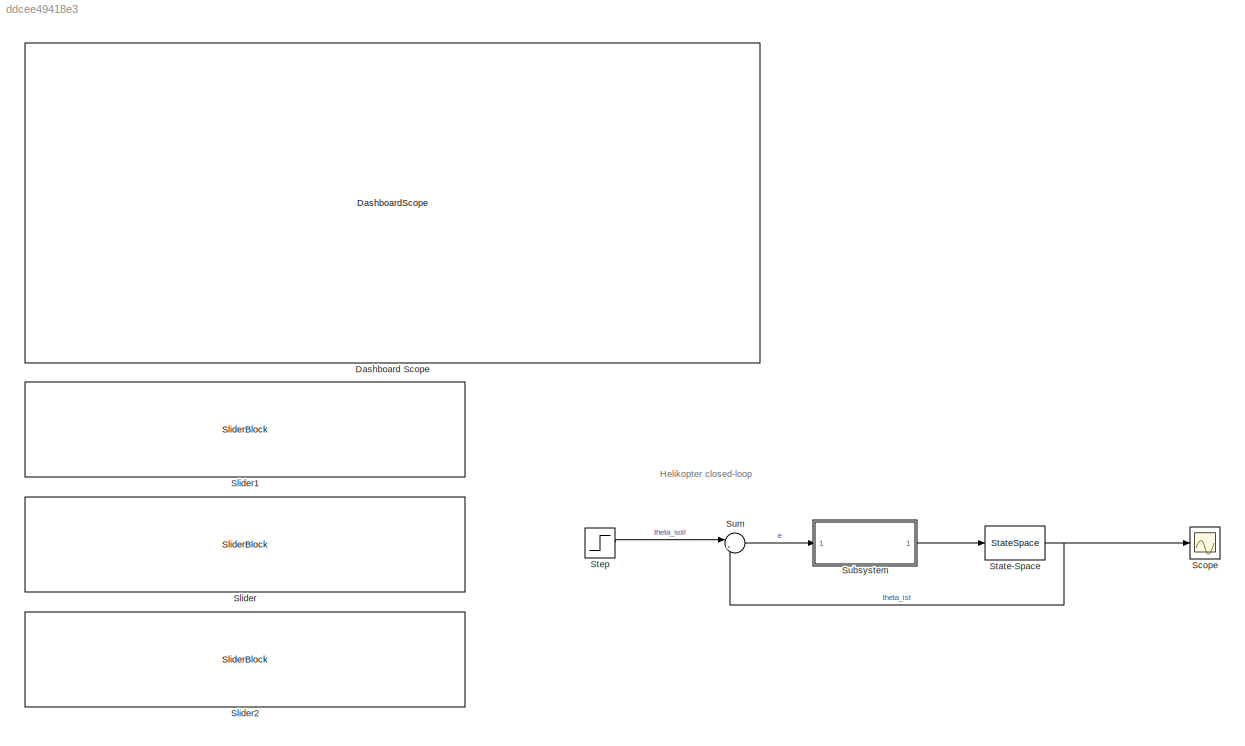
MODEL slx_ddcee49418e3
KIND model
CONFIG AbsTol = auto
CONFIG EnableMultiTasking = off
CONFIG FixedStep = auto
CONFIG MaxStep = auto
CONFIG MinStep = auto
CONFIG PostLoadFcn = if exist('09_Entwurfsverfahren', 'dir')\naddpath('09_Entwurfsverfahren')\nend
CONFIG RelTol = 1e-3
CONFIG SampleTimeConstraint = Unconstrained
CONFIG SolverName = VariableStepAuto
CONFIG StartTime = 0.0
CONFIG StopTime = 10.0
BLOCK [DashboardScope] Dashboard Scope
BLOCK [Scope] Scope
  Floating = off
  NumInputPorts = 1
  Ports = [1]
  ScopeSpecificationString = Simulink.scopes.TimeScopeBlockCfg('CurrentConfiguration', extmgr.ConfigurationSet(extmgr.Configuration('Core','General UI',true),extmgr.Configuration('Core','Source UI',true),extmgr.Configuration('Sources','WiredSimulink',true),extmgr.Configuration('Visuals','Time Domain',true),extmgr.Configuration('Tools','Plot Navigation',true),extmgr.Configuration('Tools','Measurements',true)),'Version','2022a'...<+1ch>
BLOCK [SliderBlock] Slider
  ScaleMin = 1
  ScaleType = Log
BLOCK [SliderBlock] Slider1
  ScaleMax = 3
  TickInterval = 0.5
BLOCK [SliderBlock] Slider2
  ScaleMax = 10
  ScaleMin = 0.001
  ScaleType = Log
BLOCK [StateSpace] State-Space
  A = [-0.2040 1.392 -9.8019; 0.0073 -0.4875 -0.0313; 0 1 0]
  B = [-2.1242; 8.2631;0]
  C = [0;0;1]'
  D = 0
  InitialCondition = 0
  Ports = [1, 1]
BLOCK [Step] Step
  SampleTime = 0
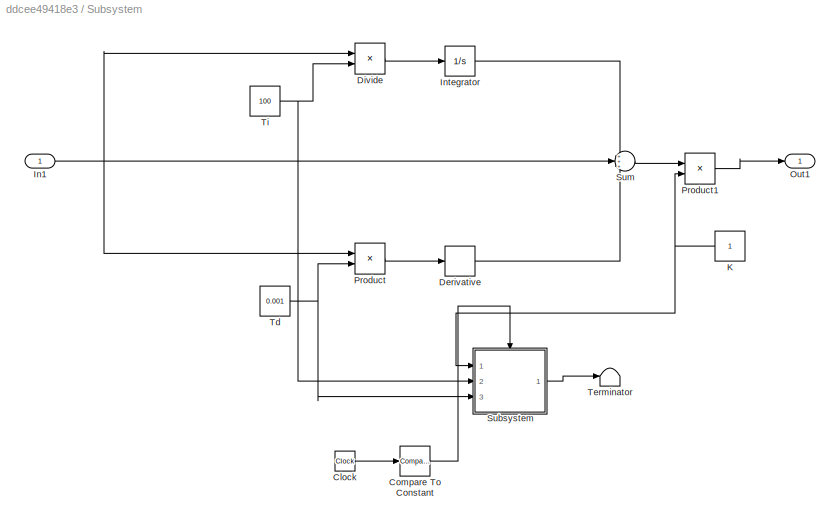
BLOCK [SubSystem] Subsystem
  Ports = [1, 1]
  RequestExecContextInheritance = off
BLOCK [Clock] Subsystem/Clock
BLOCK [Reference] Subsystem/Compare To Constant  REF=simulink/Logic and Bit
Operations/Compare
To Constant
  Ports = [1, 1]
  SourceBlock = simulink/Logic and Bit\nOperations/Compare\nTo Constant
  SourceProductBaseCode = SL
  SourceType = Compare To Constant
BLOCK [Derivative] Subsystem/Derivative
BLOCK [Product] Subsystem/Divide
  Inputs = */
  Ports = [2, 1]
BLOCK [Inport] Subsystem/In1
BLOCK [Integrator] Subsystem/Integrator
  Ports = [1, 1]
BLOCK [Constant] Subsystem/K
BLOCK [Outport] Subsystem/Out1
BLOCK [Product] Subsystem/Product
  Ports = [2, 1]
BLOCK [Product] Subsystem/Product1
  Ports = [2, 1]
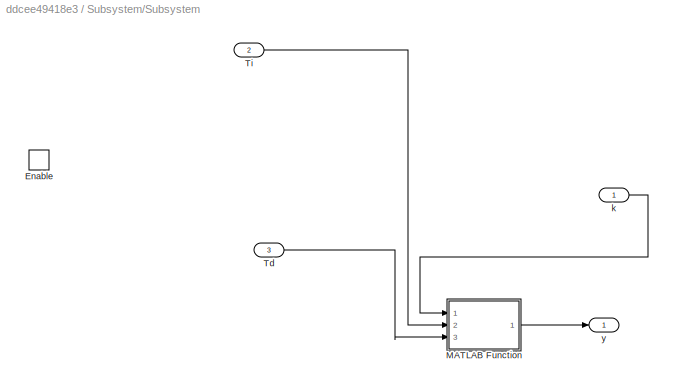
BLOCK [SubSystem] Subsystem/Subsystem
  Ports = [3, 1, 1]
  RequestExecContextInheritance = off
BLOCK [EnablePort] Subsystem/Subsystem/Enable
  Ports = []
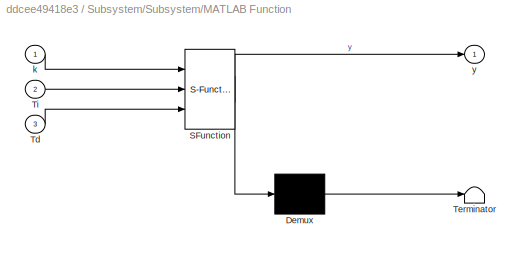
BLOCK [SubSystem] Subsystem/Subsystem/MATLAB Function
  ErrorFcn = Stateflow.Translate.translate
  PermitHierarchicalResolution = ExplicitOnly
  Ports = [3, 1]
  RequestExecContextInheritance = off
  SFBlockType = MATLAB Function
  TreatAsAtomicUnit = on
BLOCK [Demux] Subsystem/Subsystem/MATLAB Function/ Demux 
  Outputs = 1
  Ports = [1, 1]
BLOCK [S-Function] Subsystem/Subsystem/MATLAB Function/ SFunction 
  EnableBusSupport = on
  FunctionName = sf_sfun
  PortCounts = [3 2]
  Ports = [3, 2]
  SFcnIsStateOwnerBlock = off
  SFunctionDeploymentMode = off
  Tag = Stateflow S-Function 2
BLOCK [Terminator] Subsystem/Subsystem/MATLAB Function/ Terminator 
BLOCK [Inport] Subsystem/Subsystem/MATLAB Function/Td
  Port = 3
BLOCK [Inport] Subsystem/Subsystem/MATLAB Function/Ti
  Port = 2
BLOCK [Inport] Subsystem/Subsystem/MATLAB Function/k
BLOCK [Outport] Subsystem/Subsystem/MATLAB Function/y
BLOCK [Inport] Subsystem/Subsystem/Td
  Port = 3
BLOCK [Inport] Subsystem/Subsystem/Ti
  Port = 2
BLOCK [Inport] Subsystem/Subsystem/k
BLOCK [Outport] Subsystem/Subsystem/y
BLOCK [Sum] Subsystem/Sum
  Inputs = +++
  Ports = [3, 1]
BLOCK [Constant] Subsystem/Td
  Value = 0.001
BLOCK [Terminator] Subsystem/Terminator
BLOCK [Constant] Subsystem/Ti
  Value = 100
BLOCK [Sum] Sum
  Inputs = |+-
  Ports = [2, 1]
ANNOTATION (root): Helikopter closed-loop
NET State-Space:1 -> Scope:1, Sum:2
LINE Step:1 -> Sum:1
LINE Subsystem/Clock:1 -> Subsystem/Compare To Constant:1
LINE Subsystem/Compare To Constant:1 -> Subsystem/Subsystem:enable
LINE Subsystem/Derivative:1 -> Subsystem/Sum:3
LINE Subsystem/Divide:1 -> Subsystem/Integrator:1
NET Subsystem/In1:1 -> Subsystem/Divide:1, Subsystem/Product:1, Subsystem/Sum:2
LINE Subsystem/Integrator:1 -> Subsystem/Sum:1
NET Subsystem/K:1 -> Subsystem/Product1:2, Subsystem/Subsystem:1
LINE Subsystem/Product1:1 -> Subsystem/Out1:1
LINE Subsystem/Product:1 -> Subsystem/Derivative:1
LINE Subsystem/Subsystem/MATLAB Function:1 -> Subsystem/Subsystem/y:1
LINE Subsystem/Subsystem/Td:1 -> Subsystem/Subsystem/MATLAB Function:3
LINE Subsystem/Subsystem/Ti:1 -> Subsystem/Subsystem/MATLAB Function:2
LINE Subsystem/Subsystem/k:1 -> Subsystem/Subsystem/MATLAB Function:1
LINE Subsystem/Subsystem:1 -> Subsystem/Terminator:1
LINE Subsystem/Sum:1 -> Subsystem/Product1:1
NET Subsystem/Td:1 -> Subsystem/Product:2, Subsystem/Subsystem:3
NET Subsystem/Ti:1 -> Subsystem/Divide:2, Subsystem/Subsystem:2
LINE Subsystem:1 -> State-Space:1
LINE Sum:1 -> Subsystem:1
note: NET lines group one-source signal fan-out (src -> all destinations, sorted); 1:1 wires keep LINE
CHART Subsystem/Subsystem/MATLAB Function states=1 transitions=1
  STATE_LABEL 'eML_blk_kernel()'
  STATE_LABEL "SCRIPT:\nfunction y = fcn(k,Ti,Td)\n\ncoder.extrinsic('wokplot');\n\nwokplot(k,Ti,Td);\n\ny = 0;\n\nend"
CHART  states=0 transitions=0
